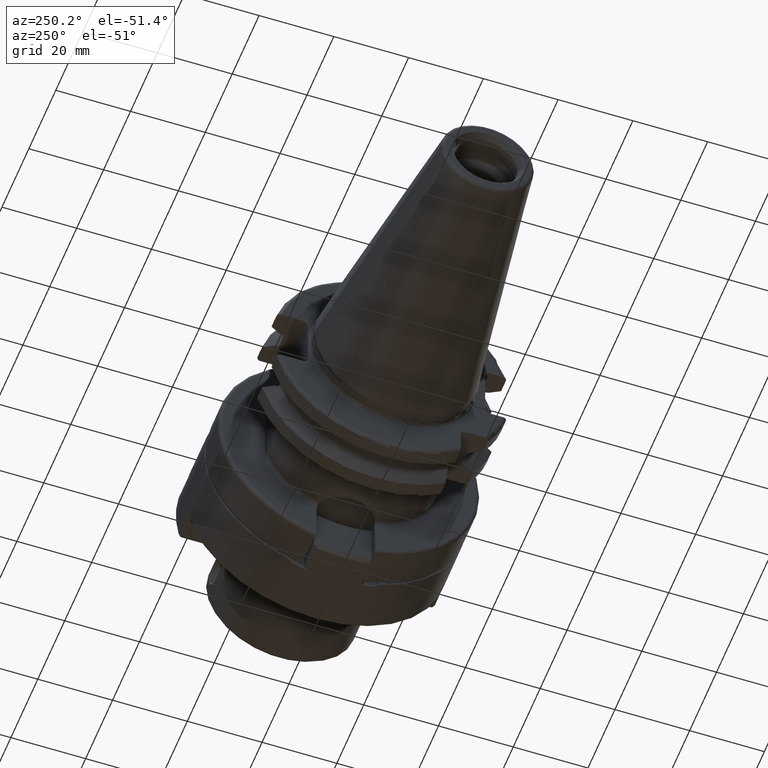
[diagram: clean part render]
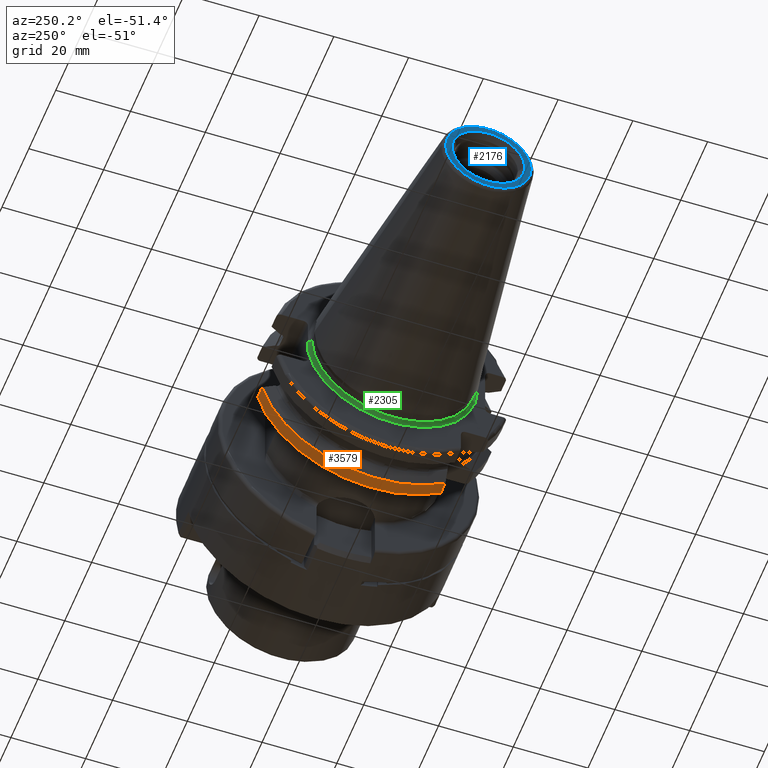
[diagram: same view with three faces highlighted in distinct colors, each labeled with its STEP entity id]
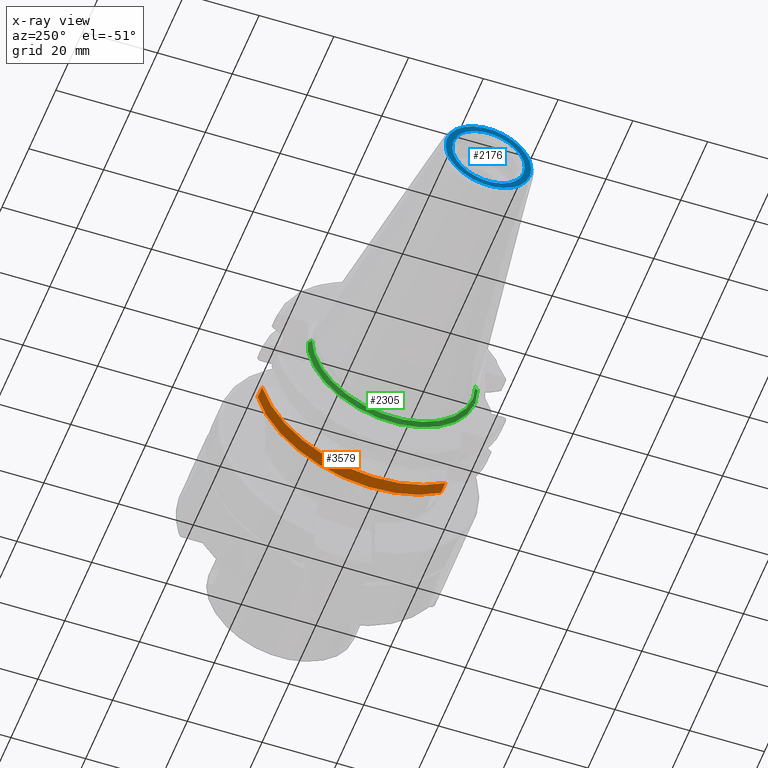
[diagram: x-ray of the same camera — body ghosted, the three highlighted faces saturated]
A machine part, auxiliary view with three faces highlighted in distinct colors.
The next image is the same camera in x-ray (body ghosted, the three faces saturated) — at least one of them is partly hidden behind the body in this view.
Their STEP definitions:

[orange] entity #3579 — the highlighted cylindrical surface (partial cylindrical patch) has radius 31.7625 mm, axis along (1, 0, 0).
#1403=DIRECTION('',(1.E0,0.E0,0.E0));
#1404=VECTOR('',#1403,3.345946479578E0);
#1405=CARTESIAN_POINT('',(1.470405352042E1,3.071231684927E1,-8.1E0));
#1406=LINE('',#1405,#1404);
#1407=CARTESIAN_POINT('',(1.470405352042E1,0.E0,0.E0));
#1408=DIRECTION('',(1.E0,0.E0,0.E0));
#1409=DIRECTION('',(0.E0,-5.777253049980E-1,-8.162312613254E-1));
#1410=AXIS2_PLACEMENT_3D('',#1407,#1408,#1409);
#1412=DIRECTION('',(1.E0,0.E0,0.E0));
#1413=VECTOR('',#1412,3.345946479578E0);
#1414=CARTESIAN_POINT('',(1.470405352042E1,-1.835E1,-2.592554543785E1));
#1415=LINE('',#1414,#1413);
#1416=CARTESIAN_POINT('',(1.805E1,0.E0,0.E0));
#1417=DIRECTION('',(-1.E0,0.E0,0.E0));
#1418=DIRECTION('',(0.E0,9.669363825036E-1,-2.550177095632E-1));
#1419=AXIS2_PLACEMENT_3D('',#1416,#1417,#1418);
#1553=CARTESIAN_POINT('',(1.470405352042E1,3.071231684927E1,-8.1E0));
#1565=CARTESIAN_POINT('',(1.470405352042E1,-1.835E1,-2.592554543785E1));
#1942=VERTEX_POINT('',#1553);
#1956=CARTESIAN_POINT('',(1.805E1,3.071231684927E1,-8.1E0));
#1957=VERTEX_POINT('',#1956);
#1983=CARTESIAN_POINT('',(1.805E1,-1.835E1,-2.592554543785E1));
#1984=VERTEX_POINT('',#1983);
#2032=VERTEX_POINT('',#1565);
#3567=CARTESIAN_POINT('',(-7.2615E1,0.E0,0.E0));
#3568=DIRECTION('',(1.E0,0.E0,0.E0));
#3569=DIRECTION('',(0.E0,-1.E0,0.E0));
#3570=AXIS2_PLACEMENT_3D('',#3567,#3568,#3569);
#3571=CYLINDRICAL_SURFACE('',#3570,3.17625E1);
#3572=ORIENTED_EDGE('',*,*,#3213,.F.);
#3574=ORIENTED_EDGE('',*,*,#3573,.F.);
#3575=ORIENTED_EDGE('',*,*,#3532,.T.);
#3576=ORIENTED_EDGE('',*,*,#3165,.F.);
#3577=EDGE_LOOP('',(#3572,#3574,#3575,#3576));
#3578=FACE_OUTER_BOUND('',#3577,.F.);
#3579=ADVANCED_FACE('',(#3578),#3571,.T.);
#1411=CIRCLE('',#1410,3.17625E1);
#1420=CIRCLE('',#1419,3.17625E1);
#3165=EDGE_CURVE('',#1957,#1984,#1420,.T.);
#3213=EDGE_CURVE('',#1942,#1957,#1406,.T.);
#3532=EDGE_CURVE('',#2032,#1984,#1415,.T.);
#3573=EDGE_CURVE('',#2032,#1942,#1411,.T.);

[blue] entity #2176 — the highlighted planar face has unit normal (1, 0, 0).
#2=CARTESIAN_POINT('',(-6.825E1,0.E0,0.E0));
#3=DIRECTION('',(-1.E0,0.E0,0.E0));
#4=DIRECTION('',(0.E0,1.E0,0.E0));
#5=AXIS2_PLACEMENT_3D('',#2,#3,#4);
#7=CARTESIAN_POINT('',(-6.825E1,0.E0,0.E0));
#8=DIRECTION('',(1.E0,0.E0,0.E0));
#9=DIRECTION('',(0.E0,1.E0,0.E0));
#10=AXIS2_PLACEMENT_3D('',#7,#8,#9);
#12=CARTESIAN_POINT('',(-6.825E1,0.E0,0.E0));
#13=DIRECTION('',(1.E0,0.E0,0.E0));
#14=DIRECTION('',(0.E0,1.E0,0.E0));
#15=AXIS2_PLACEMENT_3D('',#12,#13,#14);
#17=CARTESIAN_POINT('',(-6.825E1,0.E0,0.E0));
#18=DIRECTION('',(1.E0,0.E0,0.E0));
#19=DIRECTION('',(0.E0,-1.E0,0.E0));
#20=AXIS2_PLACEMENT_3D('',#17,#18,#19);
#1809=CARTESIAN_POINT('',(-6.825E1,1.144954820082E1,0.E0));
#1811=VERTEX_POINT('',#1809);
#1813=CARTESIAN_POINT('',(-6.825E1,-1.144954820082E1,0.E0));
#1815=VERTEX_POINT('',#1813);
#1872=CARTESIAN_POINT('',(-6.825E1,9.730940107676E0,0.E0));
#1873=CARTESIAN_POINT('',(-6.825E1,-9.730940107676E0,0.E0));
#1874=VERTEX_POINT('',#1872);
#1875=VERTEX_POINT('',#1873);
#2159=CARTESIAN_POINT('',(-6.825E1,0.E0,0.E0));
#2160=DIRECTION('',(1.E0,0.E0,0.E0));
#2161=DIRECTION('',(0.E0,-1.E0,0.E0));
#2162=AXIS2_PLACEMENT_3D('',#2159,#2160,#2161);
#2163=PLANE('',#2162);
#2165=ORIENTED_EDGE('',*,*,#2164,.F.);
#2167=ORIENTED_EDGE('',*,*,#2166,.T.);
#2168=EDGE_LOOP('',(#2165,#2167));
#2169=FACE_OUTER_BOUND('',#2168,.F.);
#2171=ORIENTED_EDGE('',*,*,#2170,.F.);
#2173=ORIENTED_EDGE('',*,*,#2172,.F.);
#2174=EDGE_LOOP('',(#2171,#2173));
#2175=FACE_BOUND('',#2174,.F.);
#2176=ADVANCED_FACE('',(#2169,#2175),#2163,.F.);
#6=CIRCLE('',#5,1.144954820082E1);
#11=CIRCLE('',#10,1.144954820082E1);
#16=CIRCLE('',#15,9.730940107676E0);
#21=CIRCLE('',#20,9.730940107676E0);
#2164=EDGE_CURVE('',#1811,#1815,#6,.T.);
#2166=EDGE_CURVE('',#1811,#1815,#11,.T.);
#2170=EDGE_CURVE('',#1874,#1875,#16,.T.);
#2172=EDGE_CURVE('',#1875,#1874,#21,.T.);

[green] entity #2305 — the highlighted toroidal blend (fillet) surface has major radius 22.875 mm and minor (blend) radius 1 mm.
#91=CARTESIAN_POINT('',(2.2E0,0.E0,0.E0));
#92=DIRECTION('',(-1.E0,0.E0,0.E0));
#93=DIRECTION('',(0.E0,1.E0,0.E0));
#94=AXIS2_PLACEMENT_3D('',#91,#92,#93);
#96=CARTESIAN_POINT('',(3.145714015969E0,2.255E1,0.E0));
#97=CARTESIAN_POINT('',(3.145714015969E0,2.255E1,-1.830251188857E-1));
#98=CARTESIAN_POINT('',(3.147263299438E0,2.255E1,-5.490774984715E-1));
#99=CARTESIAN_POINT('',(3.153915624300E0,2.255E1,-1.098219783342E0));
#100=CARTESIAN_POINT('',(3.163955531798E0,2.255E1,-1.647254187265E0));
#101=CARTESIAN_POINT('',(3.175890292850E0,2.255E1,-2.196155647006E0));
#102=CARTESIAN_POINT('',(3.187756155044E0,2.255E1,-2.744876756971E0));
#103=CARTESIAN_POINT('',(3.197183898560E0,2.255E1,-3.293518646440E0));
#104=CARTESIAN_POINT('',(3.2E0,2.255E1,-3.659354563864E0));
#105=CARTESIAN_POINT('',(3.2E0,2.255E1,-3.842281223440E0));
#107=CARTESIAN_POINT('',(2.2E0,2.2875E1,0.E0));
#108=DIRECTION('',(0.E0,0.E0,-1.E0));
#109=DIRECTION('',(9.457140159689E-1,-3.25E-1,0.E0));
#110=AXIS2_PLACEMENT_3D('',#107,#108,#109);
#112=CARTESIAN_POINT('',(2.2E0,-2.2875E1,0.E0));
#113=DIRECTION('',(0.E0,0.E0,1.E0));
#114=DIRECTION('',(1.E0,0.E0,0.E0));
#115=AXIS2_PLACEMENT_3D('',#112,#113,#114);
#117=CARTESIAN_POINT('',(3.2E0,0.E0,0.E0));
#118=DIRECTION('',(-1.E0,0.E0,0.E0));
#119=DIRECTION('',(0.E0,9.857923497268E-1,-1.679685780739E-1));
#120=AXIS2_PLACEMENT_3D('',#117,#118,#119);
#1595=CARTESIAN_POINT('',(3.145714015969E0,2.255E1,0.E0));
#1816=CARTESIAN_POINT('',(2.2E0,2.1875E1,0.E0));
#1818=VERTEX_POINT('',#1816);
#1820=CARTESIAN_POINT('',(3.2E0,-2.2875E1,0.E0));
#1821=CARTESIAN_POINT('',(2.2E0,-2.1875E1,0.E0));
#1822=VERTEX_POINT('',#1820);
#1823=VERTEX_POINT('',#1821);
#1963=VERTEX_POINT('',#1595);
#1964=VERTEX_POINT('',#105);
#2289=CARTESIAN_POINT('',(2.2E0,0.E0,0.E0));
#2290=DIRECTION('',(1.E0,0.E0,0.E0));
#2291=DIRECTION('',(0.E0,-1.E0,0.E0));
#2292=AXIS2_PLACEMENT_3D('',#2289,#2290,#2291);
#2293=TOROIDAL_SURFACE('',#2292,2.2875E1,1.E0);
#2295=ORIENTED_EDGE('',*,*,#2294,.F.);
#2297=ORIENTED_EDGE('',*,*,#2296,.T.);
#2298=ORIENTED_EDGE('',*,*,#2284,.T.);
#2300=ORIENTED_EDGE('',*,*,#2299,.F.);
#2302=ORIENTED_EDGE('',*,*,#2301,.F.);
#2303=EDGE_LOOP('',(#2295,#2297,#2298,#2300,#2302));
#2304=FACE_OUTER_BOUND('',#2303,.F.);
#2305=ADVANCED_FACE('',(#2304),#2293,.F.);
#95=CIRCLE('',#94,2.1875E1);
#106=B_SPLINE_CURVE_WITH_KNOTS('',3,(#96,#97,#98,#99,#100,#101,#102,#103,#104,
#105),.UNSPECIFIED.,.F.,.F.,(4,1,1,1,1,1,1,4),(0.E0,1.428571428571E-1,
2.857142857143E-1,4.285714285714E-1,5.714285714286E-1,7.142857142857E-1,
8.571428571429E-1,1.E0),.UNSPECIFIED.);
#111=CIRCLE('',#110,1.E0);
#116=CIRCLE('',#115,1.E0);
#121=CIRCLE('',#120,2.2875E1);
#2284=EDGE_CURVE('',#1818,#1823,#95,.T.);
#2294=EDGE_CURVE('',#1963,#1964,#106,.T.);
#2296=EDGE_CURVE('',#1963,#1818,#111,.T.);
#2299=EDGE_CURVE('',#1822,#1823,#116,.T.);
#2301=EDGE_CURVE('',#1964,#1822,#121,.T.);